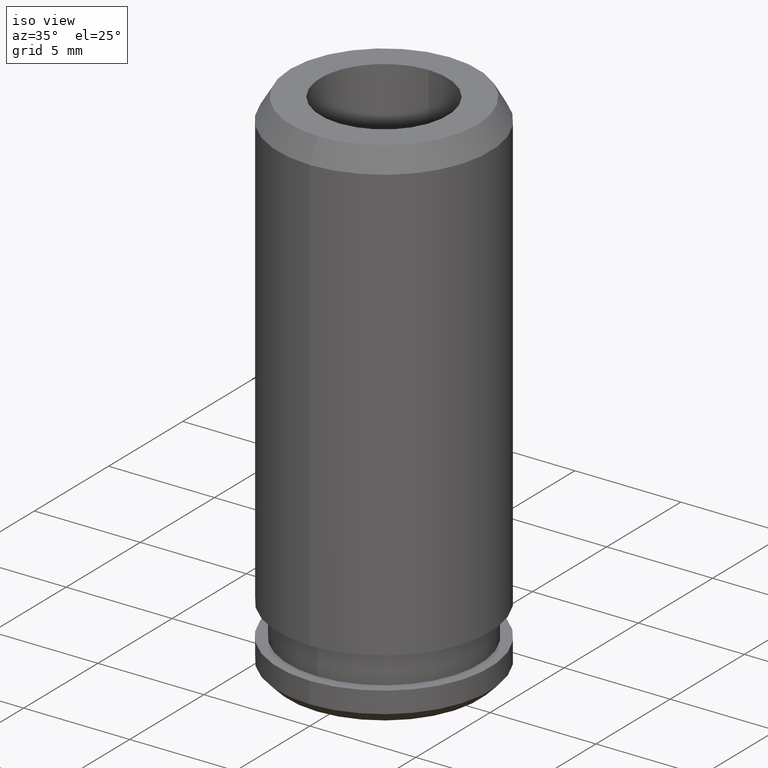
[diagram: clean part render]
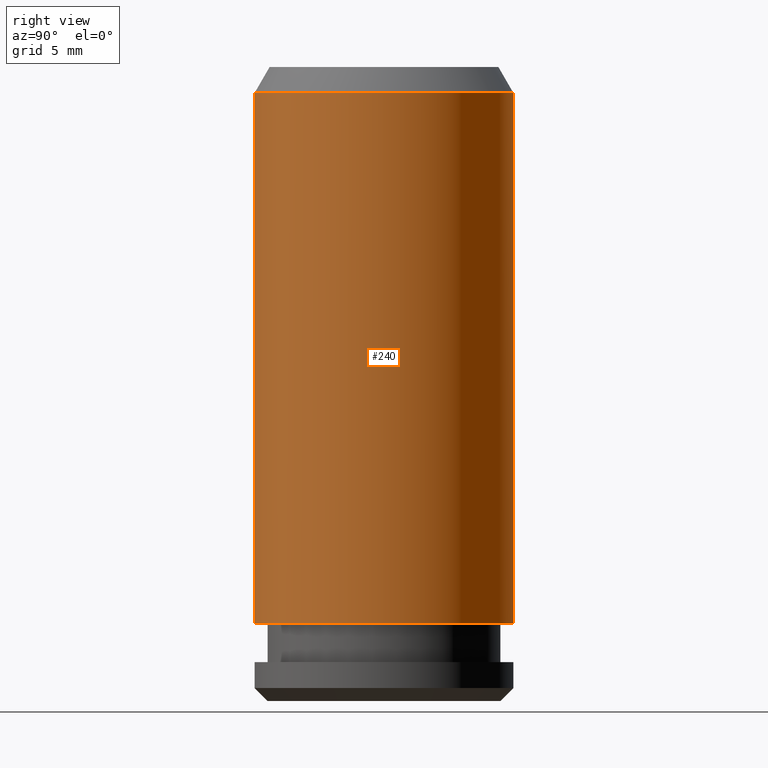
[diagram: tour spotlight — one face highlighted and labeled with its STEP entity id]
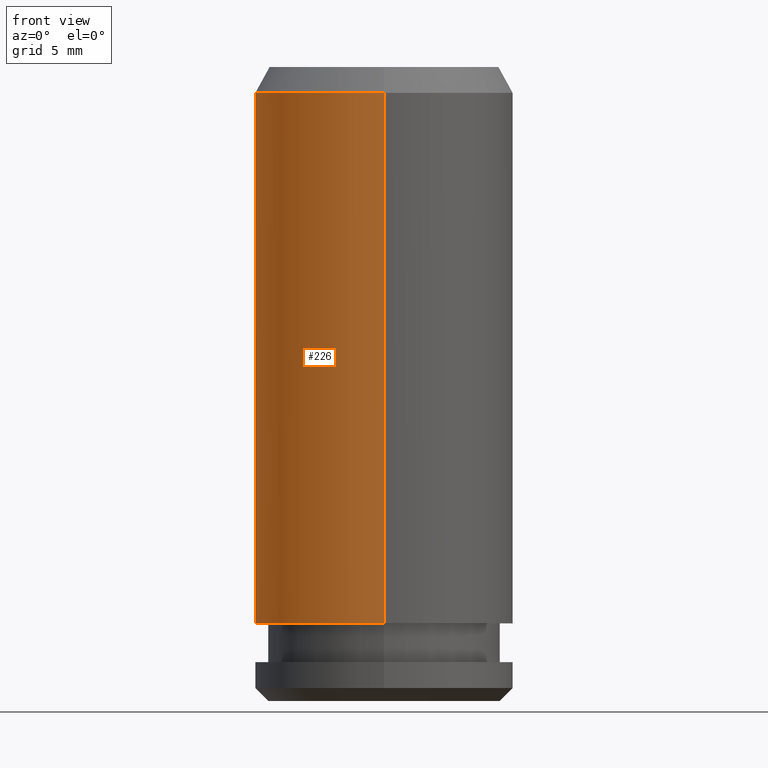
[diagram: tour spotlight — one face highlighted and labeled with its STEP entity id]
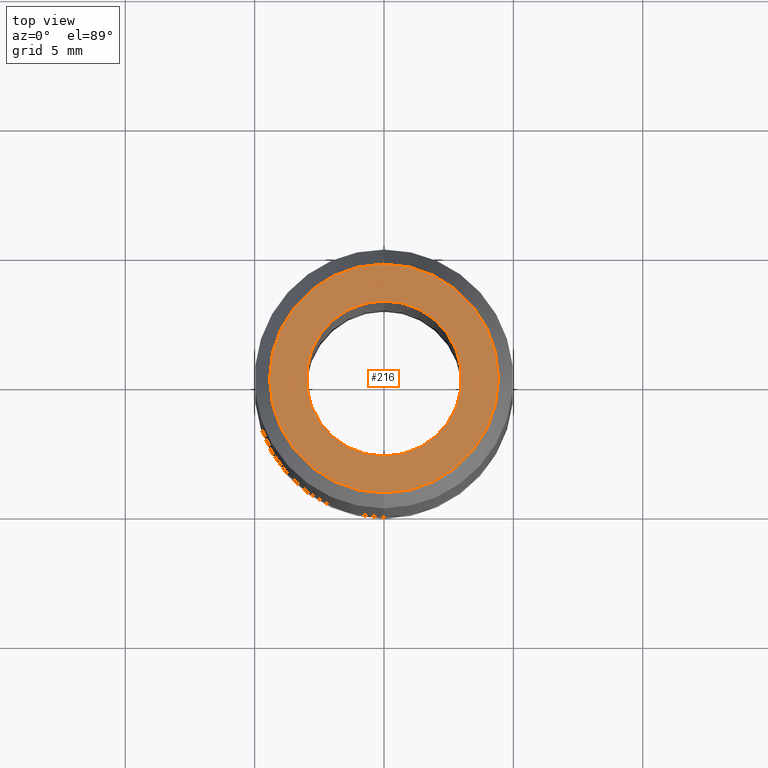
[diagram: tour spotlight — one face highlighted and labeled with its STEP entity id]
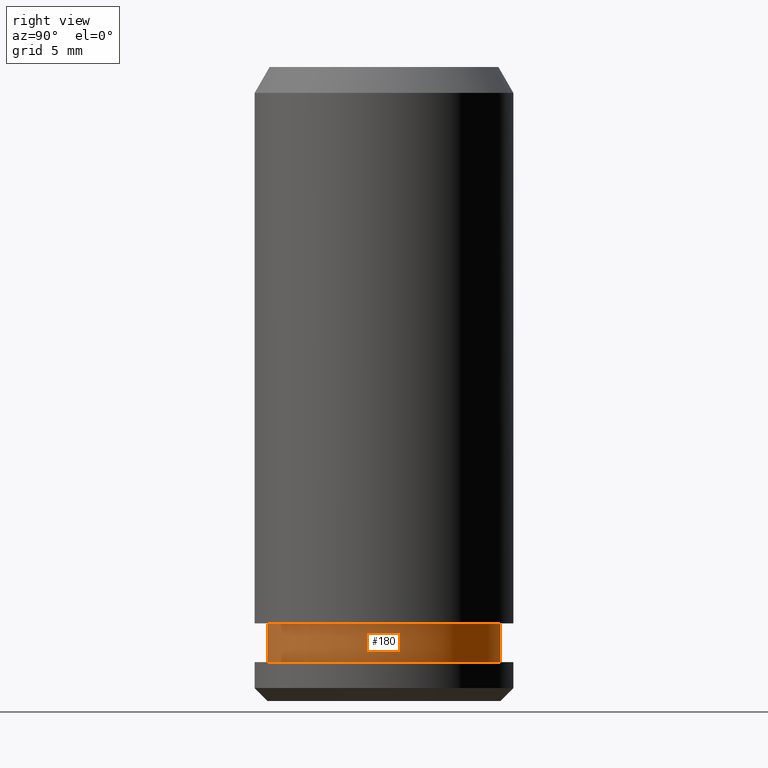
[diagram: tour spotlight — one face highlighted and labeled with its STEP entity id]
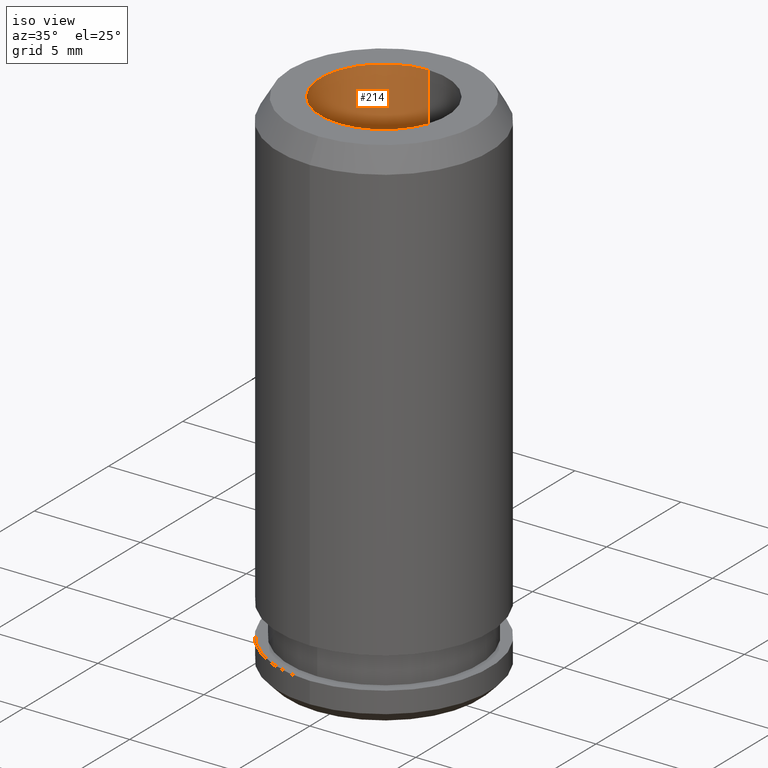
[diagram: tour spotlight — one face highlighted and labeled with its STEP entity id]
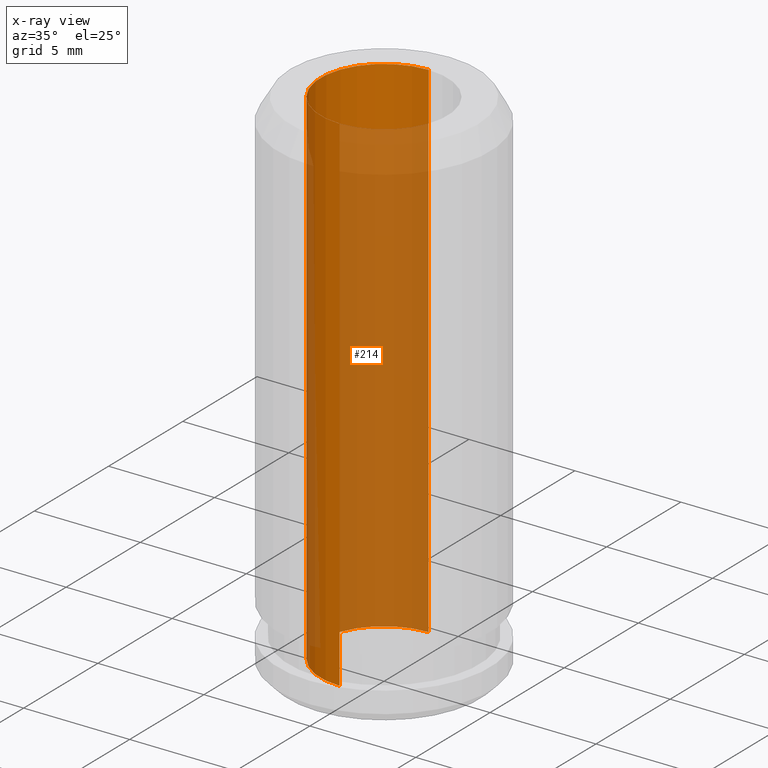
[diagram: x-ray of the same camera — body ghosted, this tour face saturated]
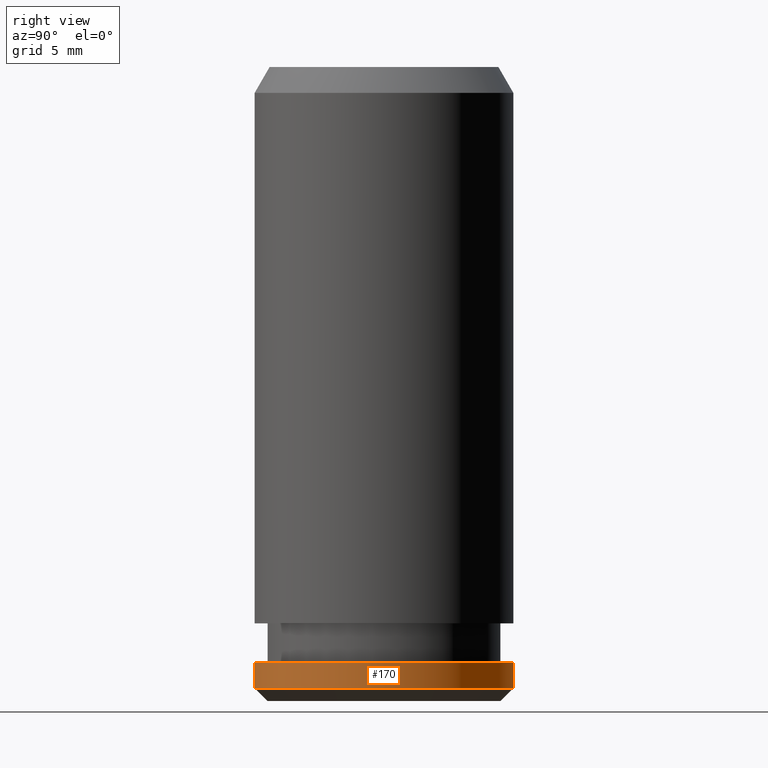
[diagram: tour spotlight — one face highlighted and labeled with its STEP entity id]
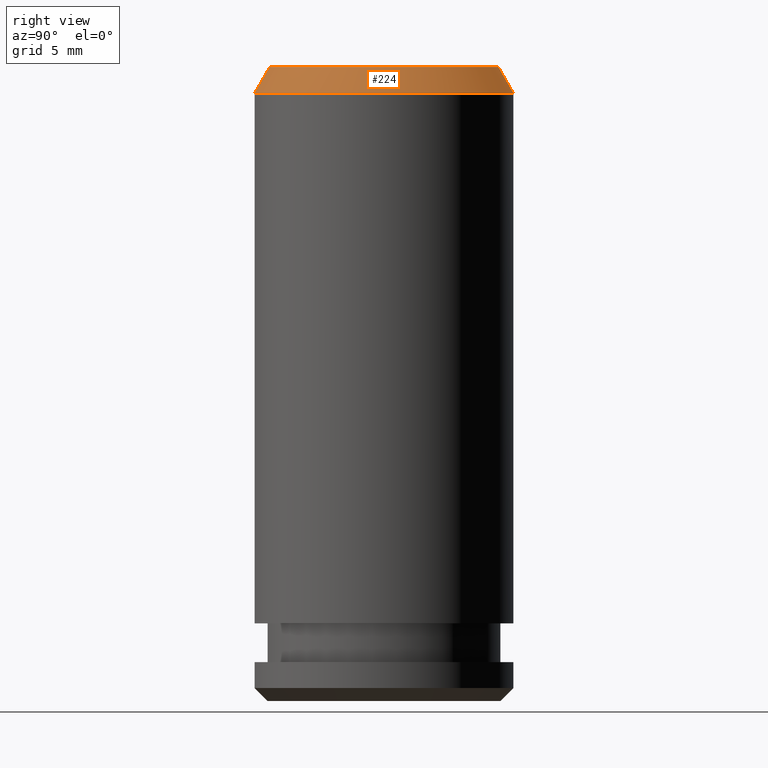
[diagram: tour spotlight — one face highlighted and labeled with its STEP entity id]
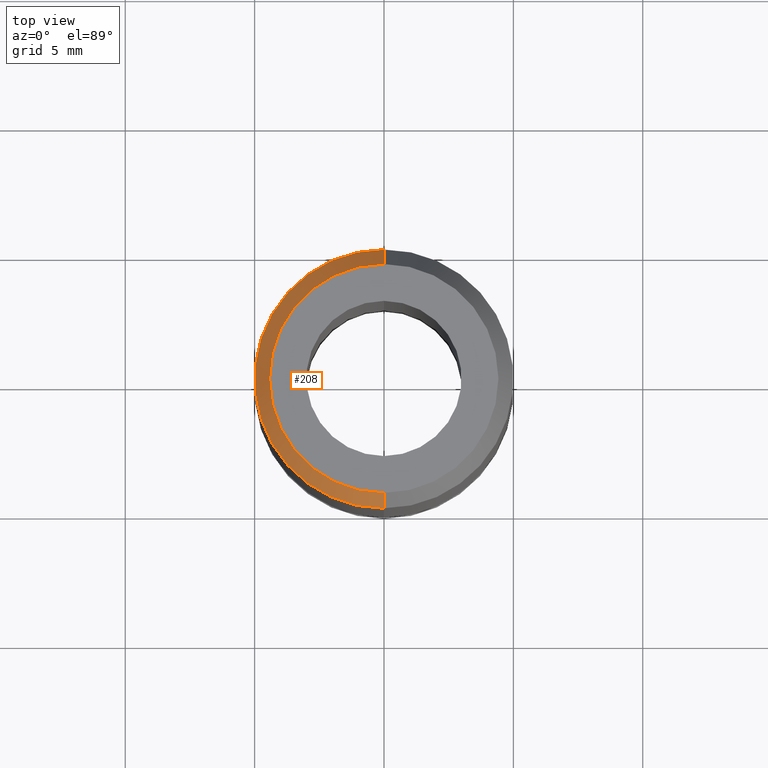
[diagram: tour spotlight — one face highlighted and labeled with its STEP entity id]
A machine part: a face-by-face anatomy tour. The part has 18 B-rep faces; the first image is the clean iso view, then the 8 largest visible faces are spotlighted one at a time (largest first), each with its STEP entity span.

Face 1 — right view, entity #240. In plain terms, the highlighted cylindrical surface (partial cylindrical patch) has radius 5 mm, axis along (0, -0, -1).
Definition (entity closure, byte-faithful):
#126=VERTEX_POINT('NONE',#297);
#134=VERTEX_POINT('NONE',#305);
#148=EDGE_CURVE('NONE',#134,#212,#320,.T.);
#158=EDGE_CURVE('NONE',#212,#126,#332,.T.);
#194=EDGE_CURVE('NONE',#198,#126,#375,.T.);
#198=VERTEX_POINT('NONE',#379);
#212=VERTEX_POINT('NONE',#396);
#234=EDGE_CURVE('NONE',#134,#198,#423,.T.);
#240=ADVANCED_FACE('NONE',(#429),#430,.T.);
#297=CARTESIAN_POINT('',(0.0,-5.0,3.0));
#305=CARTESIAN_POINT('',(-6.12303176911188E-016,5.0,23.5));
#320=CIRCLE('',#518,5.0);
#332=LINE('',#534,#535);
#375=CIRCLE('',#588,5.0);
#379=CARTESIAN_POINT('',(-6.12303176911189E-016,5.0,3.0));
#396=CARTESIAN_POINT('',(0.0,-5.0,23.5));
#423=LINE('',#648,#649);
#429=FACE_OUTER_BOUND('',#657,.T.);
#430=CYLINDRICAL_SURFACE('',#658,5.0);
#518=AXIS2_PLACEMENT_3D('',#718,#719,#720);
#534=CARTESIAN_POINT('',(0.0,-5.0,-1.13644490972339));
#535=VECTOR('',#733,1000.0);
#588=AXIS2_PLACEMENT_3D('',#802,#803,#804);
#648=CARTESIAN_POINT('',(-6.12303176911188E-016,5.0,-1.13644490972339));
#649=VECTOR('',#876,1000.0);
#657=EDGE_LOOP('',(#879,#880,#881,#882));
#658=AXIS2_PLACEMENT_3D('',#883,#884,#885);
#718=CARTESIAN_POINT('',(0.0,0.0,23.5));
#719=DIRECTION('',(0.0,0.0,-1.0));
#720=DIRECTION('',(0.0,-1.0,0.0));
#733=DIRECTION('',(0.0,0.0,-1.0));
#802=CARTESIAN_POINT('',(0.0,0.0,3.0));
#803=DIRECTION('',(0.0,0.0,-1.0));
#804=DIRECTION('',(0.0,-1.0,0.0));
#876=DIRECTION('',(0.0,0.0,-1.0));
#879=ORIENTED_EDGE('',*,*,#234,.F.);
#880=ORIENTED_EDGE('',*,*,#148,.T.);
#881=ORIENTED_EDGE('',*,*,#158,.T.);
#882=ORIENTED_EDGE('',*,*,#194,.F.);
#883=CARTESIAN_POINT('',(0.0,0.0,-1.13644490972339));
#884=DIRECTION('',(0.0,-0.0,-1.0));
#885=DIRECTION('',(0.0,-1.0,0.0));

Face 2 — front view, entity #226. In plain terms, the highlighted cylindrical surface (partial cylindrical patch) has radius 5 mm, axis along (0, -0, -1).
Definition (entity closure, byte-faithful):
#126=VERTEX_POINT('NONE',#297);
#134=VERTEX_POINT('NONE',#305);
#158=EDGE_CURVE('NONE',#212,#126,#332,.T.);
#192=EDGE_CURVE('NONE',#126,#198,#373,.T.);
#198=VERTEX_POINT('NONE',#379);
#212=VERTEX_POINT('NONE',#396);
#226=ADVANCED_FACE('NONE',(#414),#415,.T.);
#232=EDGE_CURVE('NONE',#212,#134,#421,.T.);
#234=EDGE_CURVE('NONE',#134,#198,#423,.T.);
#297=CARTESIAN_POINT('',(0.0,-5.0,3.0));
#305=CARTESIAN_POINT('',(-6.12303176911188E-016,5.0,23.5));
#332=LINE('',#534,#535);
#373=CIRCLE('',#585,5.0);
#379=CARTESIAN_POINT('',(-6.12303176911189E-016,5.0,3.0));
#396=CARTESIAN_POINT('',(0.0,-5.0,23.5));
#414=FACE_OUTER_BOUND('',#635,.T.);
#415=CYLINDRICAL_SURFACE('',#636,5.0);
#421=CIRCLE('',#645,5.0);
#423=LINE('',#648,#649);
#534=CARTESIAN_POINT('',(0.0,-5.0,-1.13644490972339));
#535=VECTOR('',#733,1000.0);
#585=AXIS2_PLACEMENT_3D('',#799,#800,#801);
#635=EDGE_LOOP('',(#860,#861,#862,#863));
#636=AXIS2_PLACEMENT_3D('',#864,#865,#866);
#645=AXIS2_PLACEMENT_3D('',#873,#874,#875);
#648=CARTESIAN_POINT('',(-6.12303176911188E-016,5.0,-1.13644490972339));
#649=VECTOR('',#876,1000.0);
#733=DIRECTION('',(0.0,0.0,-1.0));
#799=CARTESIAN_POINT('',(0.0,0.0,3.0));
#800=DIRECTION('',(0.0,0.0,-1.0));
#801=DIRECTION('',(0.0,-1.0,0.0));
#860=ORIENTED_EDGE('',*,*,#232,.T.);
#861=ORIENTED_EDGE('',*,*,#234,.T.);
#862=ORIENTED_EDGE('',*,*,#192,.F.);
#863=ORIENTED_EDGE('',*,*,#158,.F.);
#864=CARTESIAN_POINT('',(0.0,0.0,-1.13644490972339));
#865=DIRECTION('',(0.0,-0.0,-1.0));
#866=DIRECTION('',(0.0,-1.0,0.0));
#873=CARTESIAN_POINT('',(0.0,0.0,23.5));
#874=DIRECTION('',(0.0,0.0,-1.0));
#875=DIRECTION('',(0.0,-1.0,0.0));
#876=DIRECTION('',(0.0,0.0,-1.0));

Face 3 — top view, entity #216. In plain terms, the highlighted planar face has unit normal (0, -0, 1).
Definition (entity closure, byte-faithful):
#106=VERTEX_POINT('NONE',#275);
#122=VERTEX_POINT('NONE',#293);
#128=VERTEX_POINT('NONE',#299);
#144=EDGE_CURVE('NONE',#106,#128,#316,.T.);
#156=EDGE_CURVE('NONE',#122,#178,#330,.T.);
#178=VERTEX_POINT('NONE',#356);
#206=EDGE_CURVE('NONE',#178,#122,#389,.T.);
#216=ADVANCED_FACE('NONE',(#401,#402),#403,.T.);
#230=EDGE_CURVE('NONE',#128,#106,#419,.T.);
#275=CARTESIAN_POINT('',(-5.76951836509654E-016,4.42264973081037,24.5));
#293=CARTESIAN_POINT('',(0.0,-3.0,24.5));
#299=CARTESIAN_POINT('',(0.0,-4.42264973081037,24.5));
#316=CIRCLE('',#512,4.42264973081037);
#330=CIRCLE('',#531,3.0);
#356=CARTESIAN_POINT('',(-3.67381906146713E-016,3.0,24.5));
#389=CIRCLE('',#607,3.0);
#401=FACE_OUTER_BOUND('',#621,.T.);
#402=FACE_BOUND('',#622,.T.);
#403=PLANE('',#623);
#419=CIRCLE('',#642,4.42264973081037);
#512=AXIS2_PLACEMENT_3D('',#712,#713,#714);
#531=AXIS2_PLACEMENT_3D('',#730,#731,#732);
#607=AXIS2_PLACEMENT_3D('',#820,#821,#822);
#621=EDGE_LOOP('',(#841,#842));
#622=EDGE_LOOP('',(#843,#844));
#623=AXIS2_PLACEMENT_3D('',#845,#846,#847);
#642=AXIS2_PLACEMENT_3D('',#870,#871,#872);
#712=CARTESIAN_POINT('',(0.0,0.0,24.5));
#713=DIRECTION('',(0.0,0.0,-1.0));
#714=DIRECTION('',(0.0,-1.0,0.0));
#730=CARTESIAN_POINT('',(0.0,0.0,24.5));
#731=DIRECTION('',(0.0,0.0,-1.0));
#732=DIRECTION('',(0.0,-1.0,0.0));
#820=CARTESIAN_POINT('',(0.0,0.0,24.5));
#821=DIRECTION('',(0.0,0.0,-1.0));
#822=DIRECTION('',(0.0,-1.0,0.0));
#841=ORIENTED_EDGE('',*,*,#230,.F.);
#842=ORIENTED_EDGE('',*,*,#144,.F.);
#843=ORIENTED_EDGE('',*,*,#156,.T.);
#844=ORIENTED_EDGE('',*,*,#206,.T.);
#845=CARTESIAN_POINT('',(-4.42264973081037,0.0,24.5));
#846=DIRECTION('',(0.0,-0.0,1.0));
#847=DIRECTION('',(0.0,1.0,0.0));
#870=CARTESIAN_POINT('',(0.0,0.0,24.5));
#871=DIRECTION('',(0.0,0.0,-1.0));
#872=DIRECTION('',(0.0,-1.0,0.0));

Face 4 — right view, entity #180. In plain terms, the highlighted cylindrical surface (partial cylindrical patch) has radius 4.5 mm, axis along (0, -0, -1).
Definition (entity closure, byte-faithful):
#100=VERTEX_POINT('NONE',#269);
#116=EDGE_CURVE('NONE',#100,#154,#287,.T.);
#150=EDGE_CURVE('NONE',#100,#164,#322,.T.);
#154=VERTEX_POINT('NONE',#328);
#164=VERTEX_POINT('NONE',#340);
#180=ADVANCED_FACE('NONE',(#358),#359,.T.);
#220=EDGE_CURVE('NONE',#164,#242,#407,.T.);
#242=VERTEX_POINT('NONE',#432);
#246=EDGE_CURVE('NONE',#154,#242,#436,.T.);
#269=CARTESIAN_POINT('',(-5.5107285922007E-016,4.5,3.0));
#287=CIRCLE('',#475,4.5);
#322=LINE('',#521,#522);
#328=CARTESIAN_POINT('',(0.0,-4.5,3.0));
#340=CARTESIAN_POINT('',(-5.5107285922007E-016,4.5,1.5));
#358=FACE_OUTER_BOUND('',#565,.T.);
#359=CYLINDRICAL_SURFACE('',#566,4.5);
#407=CIRCLE('',#628,4.5);
#432=CARTESIAN_POINT('',(0.0,-4.5,1.5));
#436=LINE('',#665,#666);
#475=AXIS2_PLACEMENT_3D('',#695,#696,#697);
#521=CARTESIAN_POINT('',(-5.5107285922007E-016,4.5,-1.13644490972339));
#522=VECTOR('',#721,1000.0);
#565=EDGE_LOOP('',(#769,#770,#771,#772));
#566=AXIS2_PLACEMENT_3D('',#773,#774,#775);
#628=AXIS2_PLACEMENT_3D('',#848,#849,#850);
#665=CARTESIAN_POINT('',(0.0,-4.5,-1.13644490972339));
#666=VECTOR('',#886,1000.0);
#695=CARTESIAN_POINT('',(0.0,0.0,3.0));
#696=DIRECTION('',(0.0,0.0,-1.0));
#697=DIRECTION('',(0.0,-1.0,0.0));
#721=DIRECTION('',(0.0,0.0,-1.0));
#769=ORIENTED_EDGE('',*,*,#150,.F.);
#770=ORIENTED_EDGE('',*,*,#116,.T.);
#771=ORIENTED_EDGE('',*,*,#246,.T.);
#772=ORIENTED_EDGE('',*,*,#220,.F.);
#773=CARTESIAN_POINT('',(0.0,0.0,-1.13644490972339));
#774=DIRECTION('',(0.0,-0.0,-1.0));
#775=DIRECTION('',(0.0,-1.0,0.0));
#848=CARTESIAN_POINT('',(0.0,0.0,1.5));
#849=DIRECTION('',(0.0,0.0,-1.0));
#850=DIRECTION('',(0.0,-1.0,0.0));
#886=DIRECTION('',(0.0,0.0,-1.0));

Face 5 — iso view, entity #214. An x-ray twin of the same camera follows (body ghosted, this face saturated) — the face is partly hidden behind the body. In plain terms, the highlighted cylindrical surface (partial cylindrical patch) has radius 3 mm, axis along (0, -0, -1).
Definition (entity closure, byte-faithful):
#114=EDGE_CURVE('NONE',#244,#120,#285,.T.);
#120=VERTEX_POINT('NONE',#291);
#122=VERTEX_POINT('NONE',#293);
#140=EDGE_CURVE('NONE',#122,#244,#311,.T.);
#156=EDGE_CURVE('NONE',#122,#178,#330,.T.);
#178=VERTEX_POINT('NONE',#356);
#184=EDGE_CURVE('NONE',#178,#120,#363,.T.);
#214=ADVANCED_FACE('NONE',(#398),#399,.F.);
#244=VERTEX_POINT('NONE',#434);
#285=CIRCLE('',#472,3.0);
#291=CARTESIAN_POINT('',(-3.67381906146713E-016,3.0,0.519615242270668));
#293=CARTESIAN_POINT('',(0.0,-3.0,24.5));
#311=LINE('',#505,#506);
#330=CIRCLE('',#531,3.0);
#356=CARTESIAN_POINT('',(-3.67381906146713E-016,3.0,24.5));
#363=LINE('',#572,#573);
#398=FACE_OUTER_BOUND('',#618,.T.);
#399=CYLINDRICAL_SURFACE('',#619,3.0);
#434=CARTESIAN_POINT('',(0.0,-3.0,0.519615242270668));
#472=AXIS2_PLACEMENT_3D('',#692,#693,#694);
#505=CARTESIAN_POINT('',(0.0,-3.0,-1.13644490972339));
#506=VECTOR('',#703,1000.0);
#531=AXIS2_PLACEMENT_3D('',#730,#731,#732);
#572=CARTESIAN_POINT('',(-3.67381906146713E-016,3.0,-1.13644490972339));
#573=VECTOR('',#779,1000.0);
#618=EDGE_LOOP('',(#833,#834,#835,#836));
#619=AXIS2_PLACEMENT_3D('',#837,#838,#839);
#692=CARTESIAN_POINT('',(0.0,0.0,0.519615242270668));
#693=DIRECTION('',(0.0,0.0,-1.0));
#694=DIRECTION('',(0.0,-1.0,0.0));
#703=DIRECTION('',(0.0,0.0,-1.0));
#730=CARTESIAN_POINT('',(0.0,0.0,24.5));
#731=DIRECTION('',(0.0,0.0,-1.0));
#732=DIRECTION('',(0.0,-1.0,0.0));
#779=DIRECTION('',(0.0,0.0,-1.0));
#833=ORIENTED_EDGE('',*,*,#184,.F.);
#834=ORIENTED_EDGE('',*,*,#156,.F.);
#835=ORIENTED_EDGE('',*,*,#140,.T.);
#836=ORIENTED_EDGE('',*,*,#114,.T.);
#837=CARTESIAN_POINT('',(0.0,0.0,-1.13644490972339));
#838=DIRECTION('',(0.0,-0.0,-1.0));
#839=DIRECTION('',(0.0,-1.0,0.0));

Face 6 — right view, entity #170. In plain terms, the highlighted cylindrical surface (partial cylindrical patch) has radius 5 mm, axis along (0, -0, -1).
Definition (entity closure, byte-faithful):
#110=EDGE_CURVE('NONE',#166,#124,#279,.T.);
#118=EDGE_CURVE('NONE',#166,#130,#289,.T.);
#124=VERTEX_POINT('NONE',#295);
#130=VERTEX_POINT('NONE',#301);
#146=EDGE_CURVE('NONE',#130,#168,#318,.T.);
#166=VERTEX_POINT('NONE',#342);
#168=VERTEX_POINT('NONE',#344);
#170=ADVANCED_FACE('NONE',(#346),#347,.T.);
#236=EDGE_CURVE('NONE',#124,#168,#425,.T.);
#279=CIRCLE('',#465,5.0);
#289=LINE('',#478,#479);
#295=CARTESIAN_POINT('',(0.0,-5.0,1.5));
#301=CARTESIAN_POINT('',(0.0,5.0,0.5));
#318=CIRCLE('',#515,5.0);
#342=CARTESIAN_POINT('',(-6.12303176911189E-016,5.0,1.5));
#344=CARTESIAN_POINT('',(-6.12303176911189E-016,-5.0,0.5));
#346=FACE_OUTER_BOUND('',#549,.T.);
#347=CYLINDRICAL_SURFACE('',#550,5.0);
#425=LINE('',#652,#653);
#465=AXIS2_PLACEMENT_3D('',#681,#682,#683);
#478=CARTESIAN_POINT('',(-6.12303176911189E-016,5.0,-1.13644490972339));
#479=VECTOR('',#698,1000.0);
#515=AXIS2_PLACEMENT_3D('',#715,#716,#717);
#549=EDGE_LOOP('',(#751,#752,#753,#754));
#550=AXIS2_PLACEMENT_3D('',#755,#756,#757);
#652=CARTESIAN_POINT('',(0.0,-5.0,-1.13644490972339));
#653=VECTOR('',#877,1000.0);
#681=CARTESIAN_POINT('',(0.0,0.0,1.5));
#682=DIRECTION('',(0.0,0.0,-1.0));
#683=DIRECTION('',(0.0,-1.0,0.0));
#698=DIRECTION('',(0.0,0.0,-1.0));
#715=CARTESIAN_POINT('',(0.0,0.0,0.5));
#716=DIRECTION('',(0.0,0.0,-1.0));
#717=DIRECTION('',(0.0,-1.0,0.0));
#751=ORIENTED_EDGE('',*,*,#118,.F.);
#752=ORIENTED_EDGE('',*,*,#110,.T.);
#753=ORIENTED_EDGE('',*,*,#236,.T.);
#754=ORIENTED_EDGE('',*,*,#146,.F.);
#755=CARTESIAN_POINT('',(0.0,0.0,-1.13644490972339));
#756=DIRECTION('',(0.0,-0.0,-1.0));
#757=DIRECTION('',(0.0,-1.0,0.0));
#877=DIRECTION('',(0.0,0.0,-1.0));

Face 7 — right view, entity #224. In plain terms, the highlighted conical surface has half-angle 30 deg.
Definition (entity closure, byte-faithful):
#106=VERTEX_POINT('NONE',#275);
#128=VERTEX_POINT('NONE',#299);
#134=VERTEX_POINT('NONE',#305);
#138=EDGE_CURVE('NONE',#106,#134,#309,.T.);
#144=EDGE_CURVE('NONE',#106,#128,#316,.T.);
#148=EDGE_CURVE('NONE',#134,#212,#320,.T.);
#204=EDGE_CURVE('NONE',#128,#212,#387,.T.);
#212=VERTEX_POINT('NONE',#396);
#224=ADVANCED_FACE('NONE',(#411),#412,.T.);
#275=CARTESIAN_POINT('',(-5.76951836509654E-016,4.42264973081037,24.5));
#299=CARTESIAN_POINT('',(0.0,-4.42264973081037,24.5));
#305=CARTESIAN_POINT('',(-6.12303176911188E-016,5.0,23.5));
#309=LINE('',#501,#502);
#316=CIRCLE('',#512,4.42264973081037);
#320=CIRCLE('',#518,5.0);
#387=LINE('',#603,#604);
#396=CARTESIAN_POINT('',(0.0,-5.0,23.5));
#411=FACE_OUTER_BOUND('',#632,.T.);
#412=CONICAL_SURFACE('',#633,5.0,0.5235987755983);
#501=CARTESIAN_POINT('',(-6.12303176911188E-016,5.0,23.5));
#502=VECTOR('',#702,1000.0);
#512=AXIS2_PLACEMENT_3D('',#712,#713,#714);
#518=AXIS2_PLACEMENT_3D('',#718,#719,#720);
#603=CARTESIAN_POINT('',(0.0,-5.0,23.5));
#604=VECTOR('',#819,1000.0);
#632=EDGE_LOOP('',(#852,#853,#854,#855));
#633=AXIS2_PLACEMENT_3D('',#856,#857,#858);
#702=DIRECTION('',(-6.1230317691119E-017,0.500000000000001,-0.866025403784438));
#712=CARTESIAN_POINT('',(0.0,0.0,24.5));
#713=DIRECTION('',(0.0,0.0,-1.0));
#714=DIRECTION('',(0.0,-1.0,0.0));
#718=CARTESIAN_POINT('',(0.0,0.0,23.5));
#719=DIRECTION('',(0.0,0.0,-1.0));
#720=DIRECTION('',(0.0,-1.0,0.0));
#819=DIRECTION('',(0.0,-0.500000000000001,-0.866025403784438));
#852=ORIENTED_EDGE('',*,*,#138,.F.);
#853=ORIENTED_EDGE('',*,*,#144,.T.);
#854=ORIENTED_EDGE('',*,*,#204,.T.);
#855=ORIENTED_EDGE('',*,*,#148,.F.);
#856=CARTESIAN_POINT('',(0.0,0.0,23.5));
#857=DIRECTION('',(0.0,-0.0,-1.0));
#858=DIRECTION('',(0.0,-1.0,0.0));

Face 8 — top view, entity #208. In plain terms, the highlighted conical surface has half-angle 30 deg.
Definition (entity closure, byte-faithful):
#106=VERTEX_POINT('NONE',#275);
#128=VERTEX_POINT('NONE',#299);
#134=VERTEX_POINT('NONE',#305);
#138=EDGE_CURVE('NONE',#106,#134,#309,.T.);
#204=EDGE_CURVE('NONE',#128,#212,#387,.T.);
#208=ADVANCED_FACE('NONE',(#391),#392,.T.);
#212=VERTEX_POINT('NONE',#396);
#230=EDGE_CURVE('NONE',#128,#106,#419,.T.);
#232=EDGE_CURVE('NONE',#212,#134,#421,.T.);
#275=CARTESIAN_POINT('',(-5.76951836509654E-016,4.42264973081037,24.5));
#299=CARTESIAN_POINT('',(0.0,-4.42264973081037,24.5));
#305=CARTESIAN_POINT('',(-6.12303176911188E-016,5.0,23.5));
#309=LINE('',#501,#502);
#387=LINE('',#603,#604);
#391=FACE_OUTER_BOUND('',#609,.T.);
#392=CONICAL_SURFACE('',#610,5.0,0.5235987755983);
#396=CARTESIAN_POINT('',(0.0,-5.0,23.5));
#419=CIRCLE('',#642,4.42264973081037);
#421=CIRCLE('',#645,5.0);
#501=CARTESIAN_POINT('',(-6.12303176911188E-016,5.0,23.5));
#502=VECTOR('',#702,1000.0);
#603=CARTESIAN_POINT('',(0.0,-5.0,23.5));
#604=VECTOR('',#819,1000.0);
#609=EDGE_LOOP('',(#824,#825,#826,#827));
#610=AXIS2_PLACEMENT_3D('',#828,#829,#830);
#642=AXIS2_PLACEMENT_3D('',#870,#871,#872);
#645=AXIS2_PLACEMENT_3D('',#873,#874,#875);
#702=DIRECTION('',(-6.1230317691119E-017,0.500000000000001,-0.866025403784438));
#819=DIRECTION('',(0.0,-0.500000000000001,-0.866025403784438));
#824=ORIENTED_EDGE('',*,*,#230,.T.);
#825=ORIENTED_EDGE('',*,*,#138,.T.);
#826=ORIENTED_EDGE('',*,*,#232,.F.);
#827=ORIENTED_EDGE('',*,*,#204,.F.);
#828=CARTESIAN_POINT('',(0.0,0.0,23.5));
#829=DIRECTION('',(0.0,-0.0,-1.0));
#830=DIRECTION('',(0.0,-1.0,0.0));
#870=CARTESIAN_POINT('',(0.0,0.0,24.5));
#871=DIRECTION('',(0.0,0.0,-1.0));
#872=DIRECTION('',(0.0,-1.0,0.0));
#873=CARTESIAN_POINT('',(0.0,0.0,23.5));
#874=DIRECTION('',(0.0,0.0,-1.0));
#875=DIRECTION('',(0.0,-1.0,0.0));